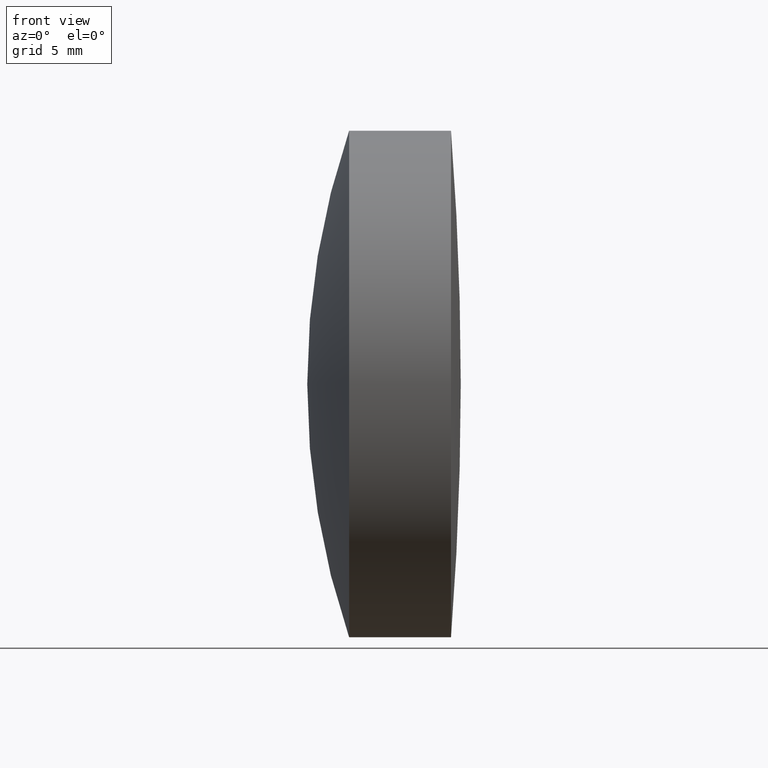
[diagram: clean part render]
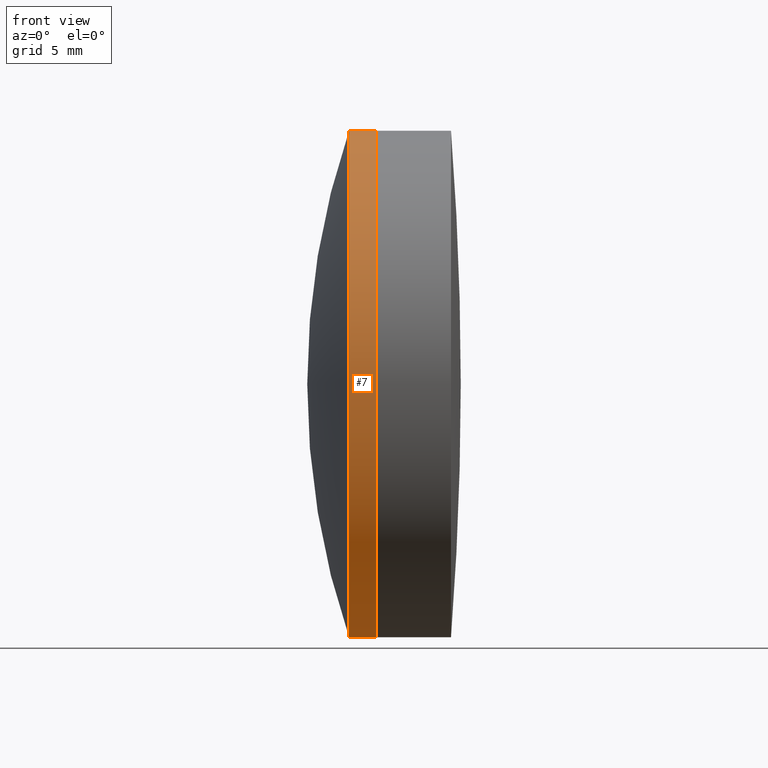
[diagram: same view with one face highlighted and labeled with its STEP entity id]
A machine part, front view. The second image highlights one B-rep face of the part: STEP entity #7.
In plain terms, the highlighted cylindrical surface (partial cylindrical patch) has radius 12.7 mm, axis along (-1, -0, -0).
Its self-contained STEP definition (entity closure, byte-faithful):
#6 = CARTESIAN_POINT ( 'NONE',  ( 294.9373187479075700, 1.555301434917139400E-015, -12.70000000000000800 ) ) ;
#7 = ADVANCED_FACE ( 'NONE', ( #311 ), #265, .T. ) ;
#11 = DIRECTION ( 'NONE',  ( 0.0000000000000000000, 0.0000000000000000000, 1.000000000000000000 ) ) ;
#23 = CIRCLE ( 'NONE', #269, 12.70000000000000800 ) ;
#30 = CARTESIAN_POINT ( 'NONE',  ( 294.9373187479075700, 0.0000000000000000000, 12.70000000000000800 ) ) ;
#38 = DIRECTION ( 'NONE',  ( -1.000000000000000000, -0.0000000000000000000, -0.0000000000000000000 ) ) ;
#42 = AXIS2_PLACEMENT_3D ( 'NONE', #61, #129, #11 ) ;
#51 = VERTEX_POINT ( 'NONE', #229 ) ;
#58 = DIRECTION ( 'NONE',  ( -1.000000000000000000, -0.0000000000000000000, -0.0000000000000000000 ) ) ;
#59 = VERTEX_POINT ( 'NONE', #279 ) ;
#61 = CARTESIAN_POINT ( 'NONE',  ( 124.5233095260452400, 0.0000000000000000000, 0.0000000000000000000 ) ) ;
#70 = EDGE_CURVE ( 'NONE', #51, #59, #23, .T. ) ;
#129 = DIRECTION ( 'NONE',  ( -1.000000000000000000, -0.0000000000000000000, -0.0000000000000000000 ) ) ;
#130 = VECTOR ( 'NONE', #58, 1000.000000000000000 ) ;
#132 = EDGE_CURVE ( 'NONE', #307, #59, #261, .T. ) ;
#137 = EDGE_CURVE ( 'NONE', #187, #51, #323, .T. ) ;
#159 = EDGE_CURVE ( 'NONE', #187, #307, #316, .T. ) ;
#187 = VERTEX_POINT ( 'NONE', #6 ) ;
#188 = VECTOR ( 'NONE', #38, 1000.000000000000000 ) ;
#200 = CARTESIAN_POINT ( 'NONE',  ( 124.5233095260452400, 1.555301434917139400E-015, -12.70000000000000800 ) ) ;
#209 = ORIENTED_EDGE ( 'NONE', *, *, #159, .T. ) ;
#228 = CARTESIAN_POINT ( 'NONE',  ( 124.5233095260452400, 0.0000000000000000000, 12.70000000000000800 ) ) ;
#229 = CARTESIAN_POINT ( 'NONE',  ( 293.5774349548790400, 0.0000000000000000000, -12.69999999999999900 ) ) ;
#248 = DIRECTION ( 'NONE',  ( 0.0000000000000000000, 0.0000000000000000000, 1.000000000000000000 ) ) ;
#261 = LINE ( 'NONE', #228, #188 ) ;
#265 = CYLINDRICAL_SURFACE ( 'NONE', #42, 12.70000000000000800 ) ;
#269 = AXIS2_PLACEMENT_3D ( 'NONE', #328, #281, #276 ) ;
#276 = DIRECTION ( 'NONE',  ( 0.0000000000000000000, 0.0000000000000000000, 1.000000000000000000 ) ) ;
#279 = CARTESIAN_POINT ( 'NONE',  ( 293.5774349548790400, -1.555301434917138200E-015, 12.70000000000000600 ) ) ;
#281 = DIRECTION ( 'NONE',  ( -1.000000000000000000, -0.0000000000000000000, -0.0000000000000000000 ) ) ;
#298 = EDGE_LOOP ( 'NONE', ( #338, #209, #322, #343 ) ) ;
#304 = DIRECTION ( 'NONE',  ( -1.000000000000000000, -0.0000000000000000000, -0.0000000000000000000 ) ) ;
#307 = VERTEX_POINT ( 'NONE', #30 ) ;
#311 = FACE_OUTER_BOUND ( 'NONE', #298, .T. ) ;
#316 = CIRCLE ( 'NONE', #317, 12.70000000000000800 ) ;
#317 = AXIS2_PLACEMENT_3D ( 'NONE', #330, #304, #248 ) ;
#322 = ORIENTED_EDGE ( 'NONE', *, *, #132, .T. ) ;
#323 = LINE ( 'NONE', #200, #130 ) ;
#328 = CARTESIAN_POINT ( 'NONE',  ( 293.5774349548790400, 0.0000000000000000000, 0.0000000000000000000 ) ) ;
#330 = CARTESIAN_POINT ( 'NONE',  ( 294.9373187479075700, 0.0000000000000000000, 0.0000000000000000000 ) ) ;
#338 = ORIENTED_EDGE ( 'NONE', *, *, #137, .F. ) ;
#343 = ORIENTED_EDGE ( 'NONE', *, *, #70, .F. ) ;